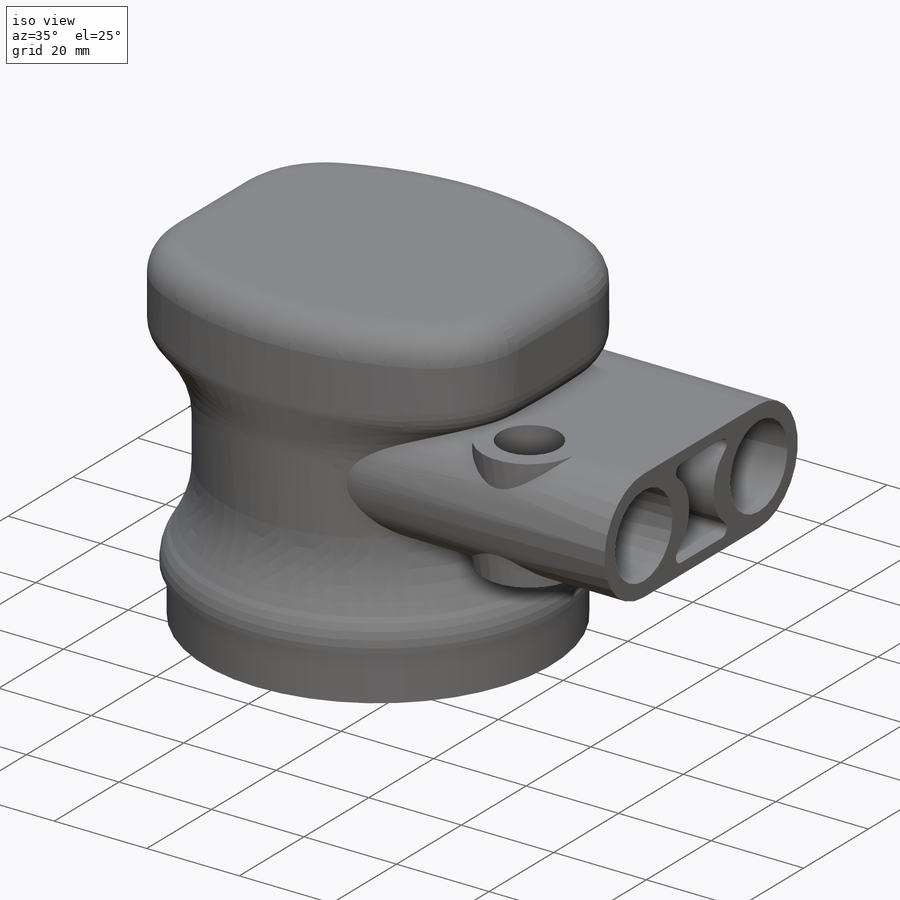
[diagram: iso view]
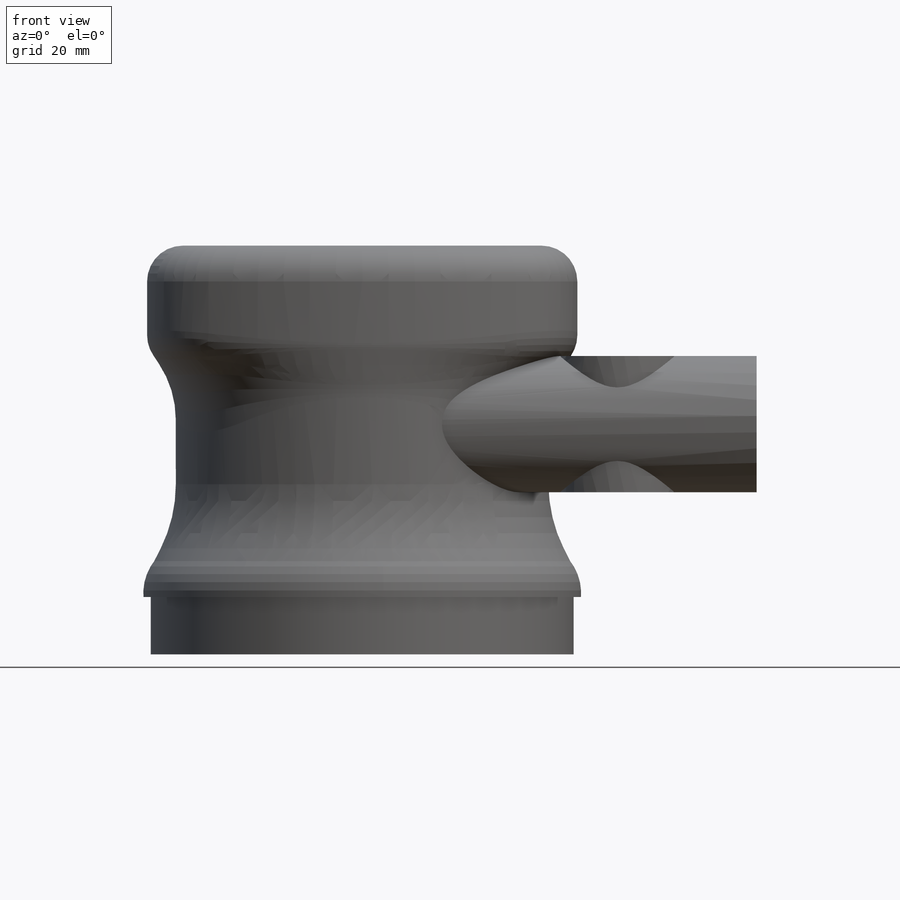
[diagram: front view]
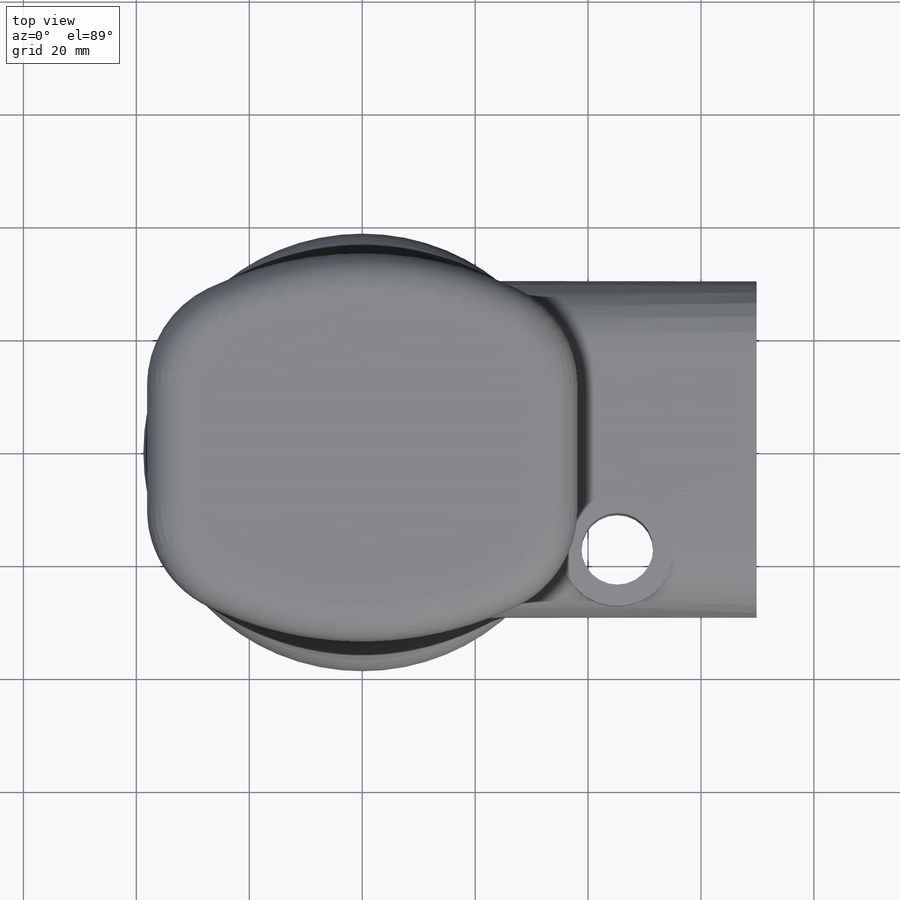
[diagram: top view]
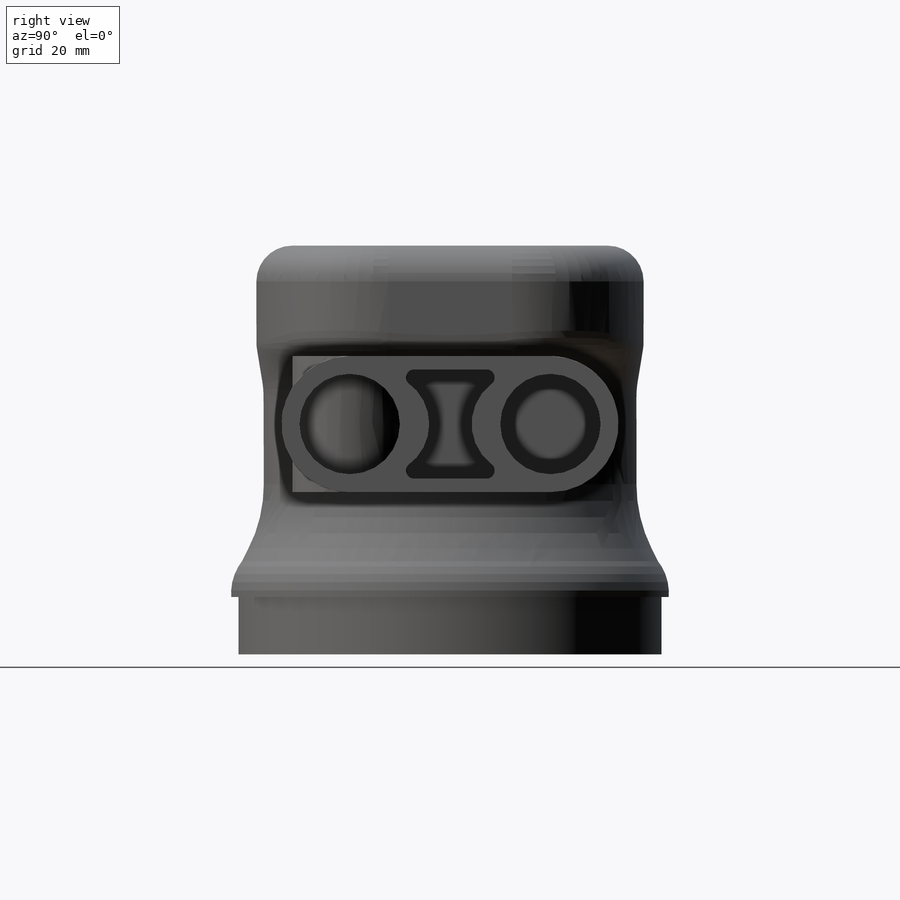
[diagram: right view]
SOLIDWORKS PART (.sldprt)
format: sldprt  version: not decoded by parser v0  size: 519,680 bytes
history: native  units: mm
features: sketch x11, extrude x5, fillet x4, plane x4, cut_extrude x4, material x1, revolve x1 (+13 scaffold rows collapsed)
feature tree (43):
  scaffold x13  (default folders/planes/origin — collapsed)
  material  "Material <not specified>"
  sketch  "Sketch1"  dims[D1=68.58mm D2=76.2mm D3=12.7mm D4=12.7mm]
  extrude  "Boss-Extrude1"  Depth=17.78mm
  fillet  "Fillet1"  Radius=6.35mm
  plane  "Plane1"  Offset=7.62mm
  sketch  "Sketch2"  dims[D1=~26.554201mm]
  extrude  "Boss-Extrude2"  Depth=22.86mm
  fillet  "Fillet2"  Radius=17.78mm
  plane  "Plane2"  Offset=7.62mm
  sketch  "Sketch3"  dims[D1=~35.860999mm]
  fillet  "Fillet3"  Radius=25.4mm
  plane  "Plane3"
  sketch  "Sketch5"  dims[D1=1.905mm]
  revolve  "Revolve4"  Angle=360deg
  fillet  "Fillet4"  Radius=6.35mm
  sketch  "Sketch6"  dims[D1=~33.982996mm]
  extrude  "Boss-Extrude3"  Depth=10.16mm
  plane  "Plane4"  Offset=38.1mm
  sketch  "Sketch7"  dims[D1=35.56mm]
  extrude  "Boss-Extrude4"  Depth=31.75mm
  sketch  "Sketch8"  dims[D1=~6.460075mm]
  cut_extrude  "Cut-Extrude1"  Depth=60.96mm
  sketch  "Sketch9"  dims[D1=~6.437068mm]
  cut_extrude  "Cut-Extrude2"  Depth=60.96mm
  sketch  "Sketch10"  dims[D1=5.08mm D2=5.08mm]
  cut_extrude  "Cut-Extrude3"  Depth=35.56mm
  sketch  "Sketch11"  dims[D1=~5.581781mm]
  cut_extrude  "Cut-Extrude4"  Depth=35.56mm
  sketch  "Sketch12"  dims[D1=0.0mm D2=3.81mm]
  extrude  "Boss-Extrude5"  Depth=24.13mm
decode coverage: 25 of 25 modeling features carry decoded parameters
note: ~ marks probable driven/reference dimensions
note: suppression state not decoded; provenance and decode notes live in map.json
